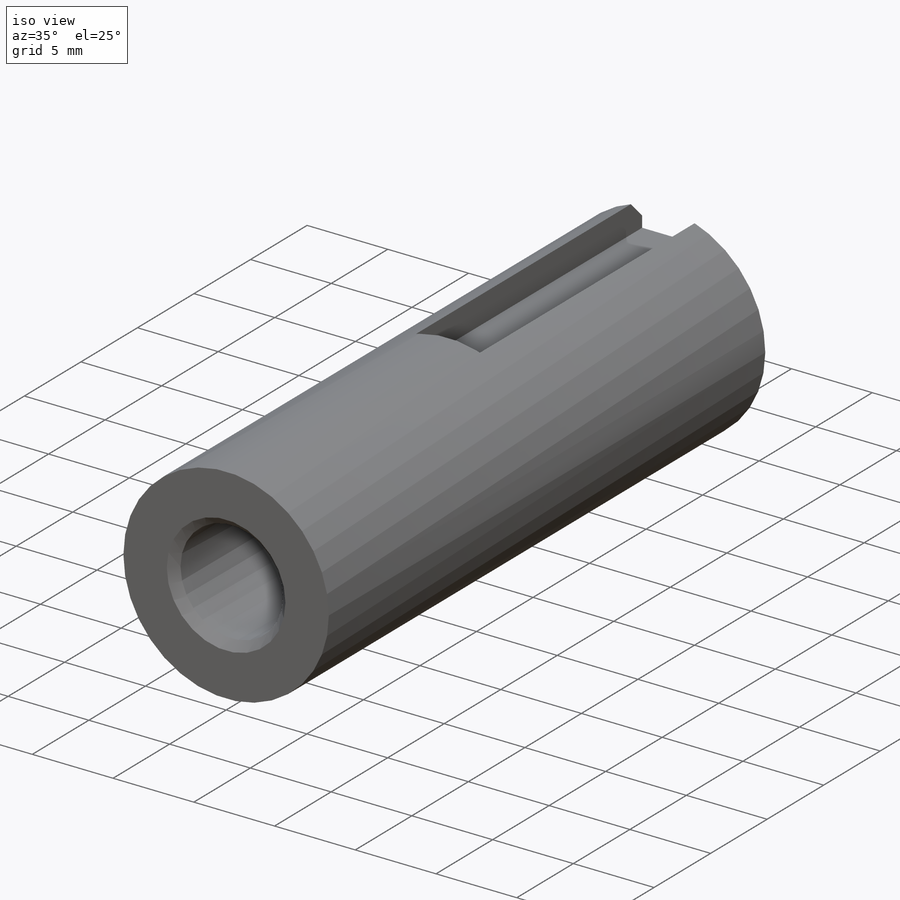
[diagram: iso view]
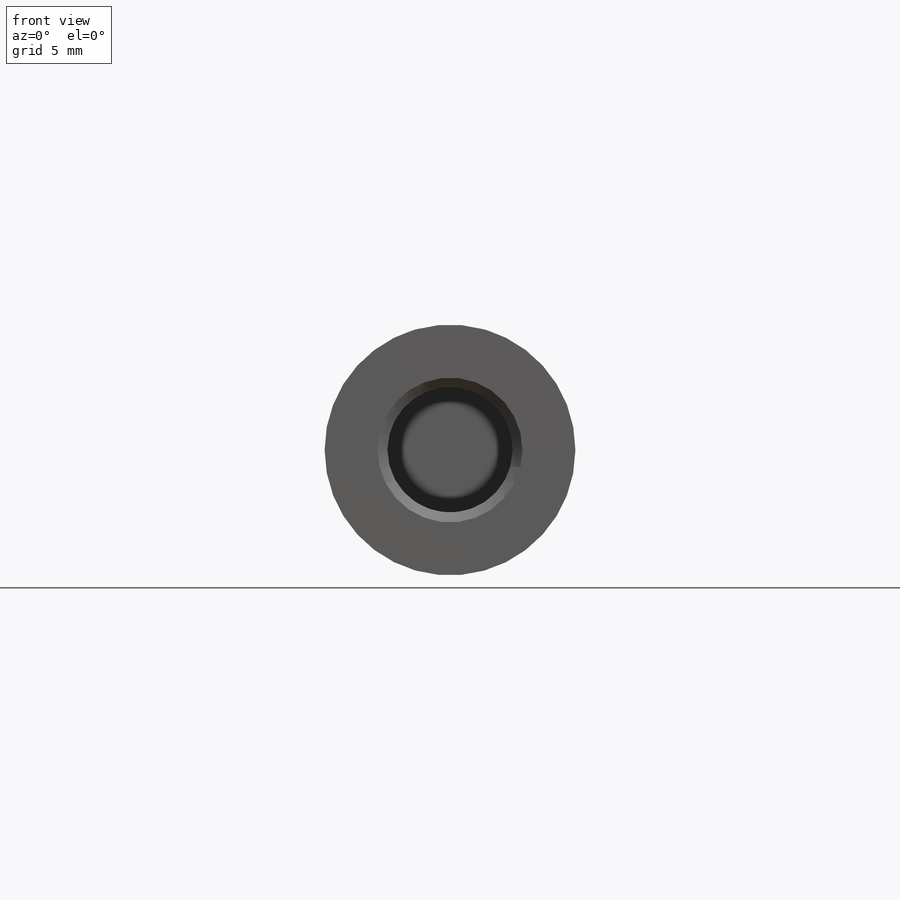
[diagram: front view]
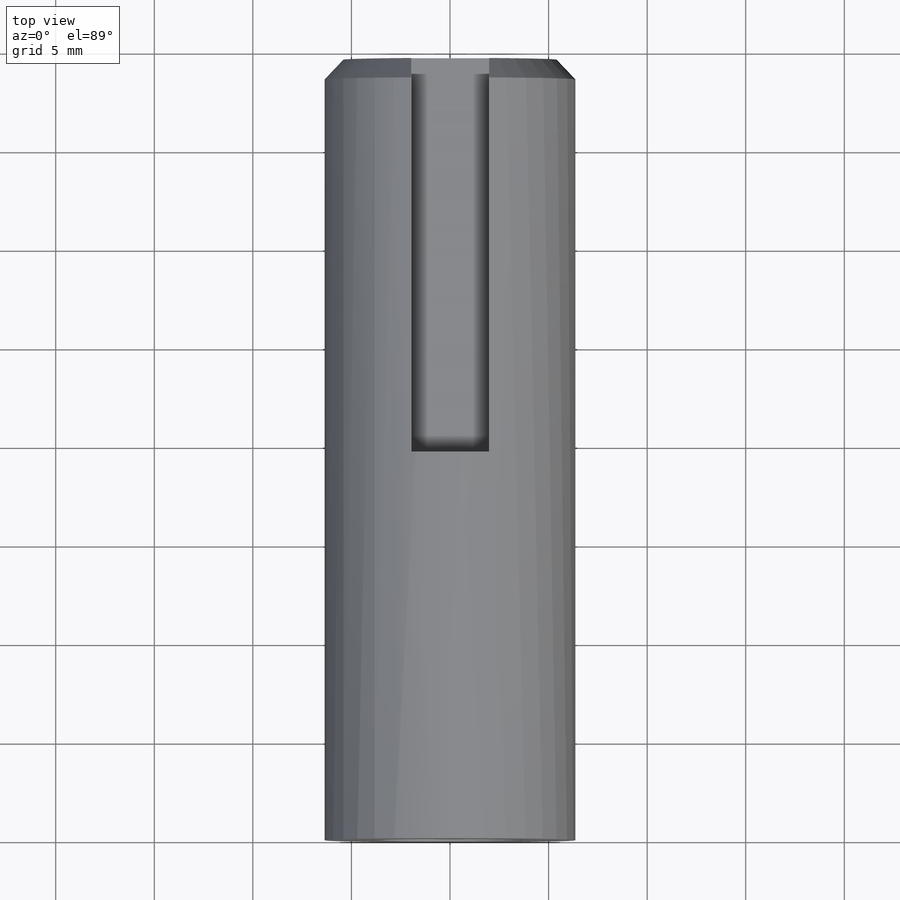
[diagram: top view]
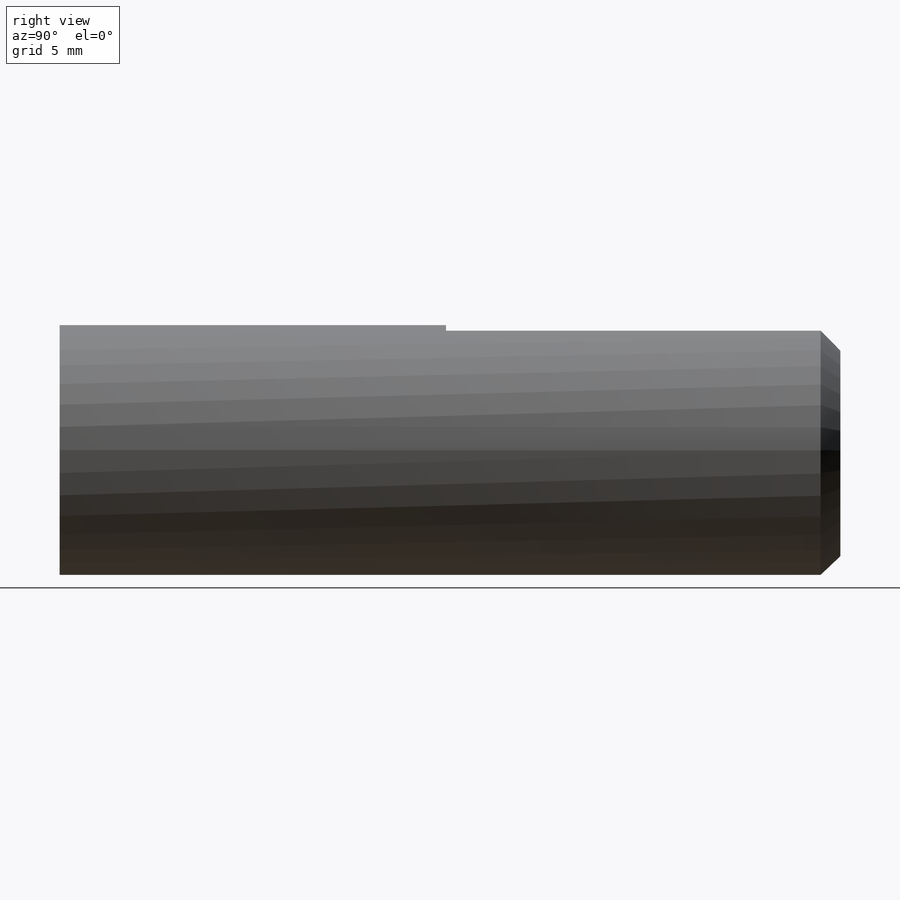
[diagram: right view]
SOLIDWORKS PART (.sldprt)
format: sldprt  version: not decoded by parser v0  size: 193,024 bytes
history: native  units: mm
features: plane x3, sketch x3, cut_extrude x2, chamfer x2, material x1, extrude x1 (+9 scaffold rows collapsed)
feature tree (21):
  scaffold x9  (default folders/planes/origin — collapsed)
  material  "ASTM A36 Acero"
  plane  "Alzado"
  plane  "Planta"
  plane  "Vista lateral"
  sketch  "Croquis3"  dims[D1=6.35mm]
  extrude  "Saliente-Extruir2"  Depth=39.6mm
  sketch  "Croquis4"
  cut_extrude  "Cortar-Extruir1"  Depth=19.3mm
  sketch  "Croquis6"  dims[D1=3.95mm]
  cut_extrude  "Cortar-Extruir3"  Depth=20mm
  chamfer  "Chaflán1"  Distance=0.95mm
  chamfer  "Chaflán2"  Distance=0.5mm
decode coverage: 7 of 8 modeling features carry decoded parameters
note: suppression state not decoded; provenance and decode notes live in map.json
